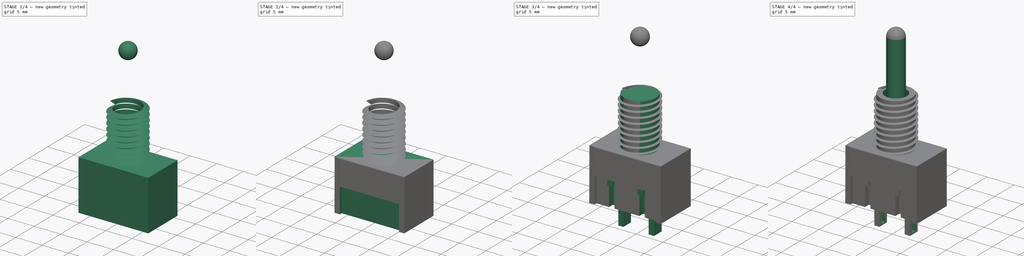
[diagram: build sequence overview — one tinted view per stage of 4, left to right]
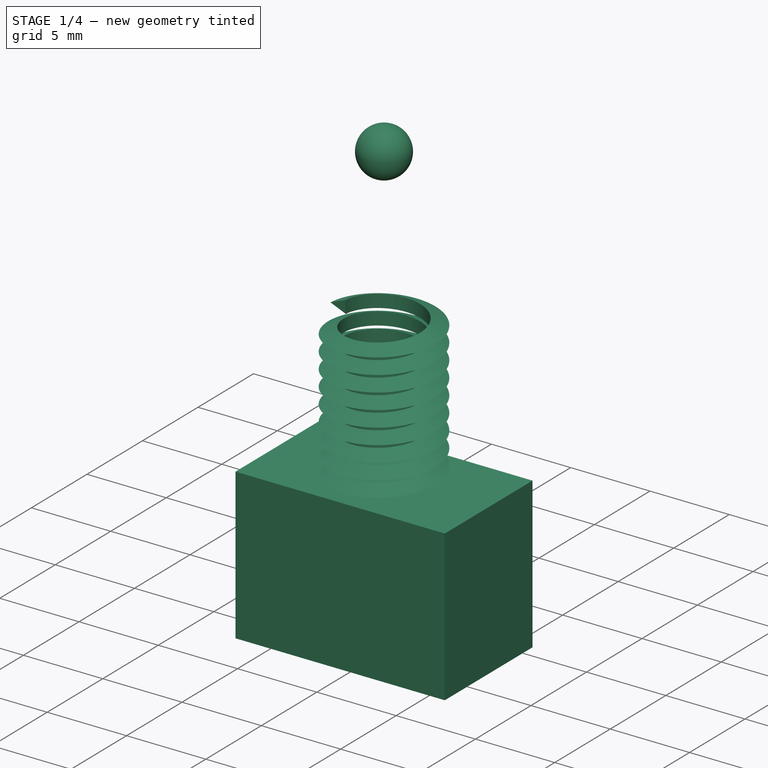
[diagram: stage 1 of 4 — iso view after this stage's code; geometry added in this stage tinted green]
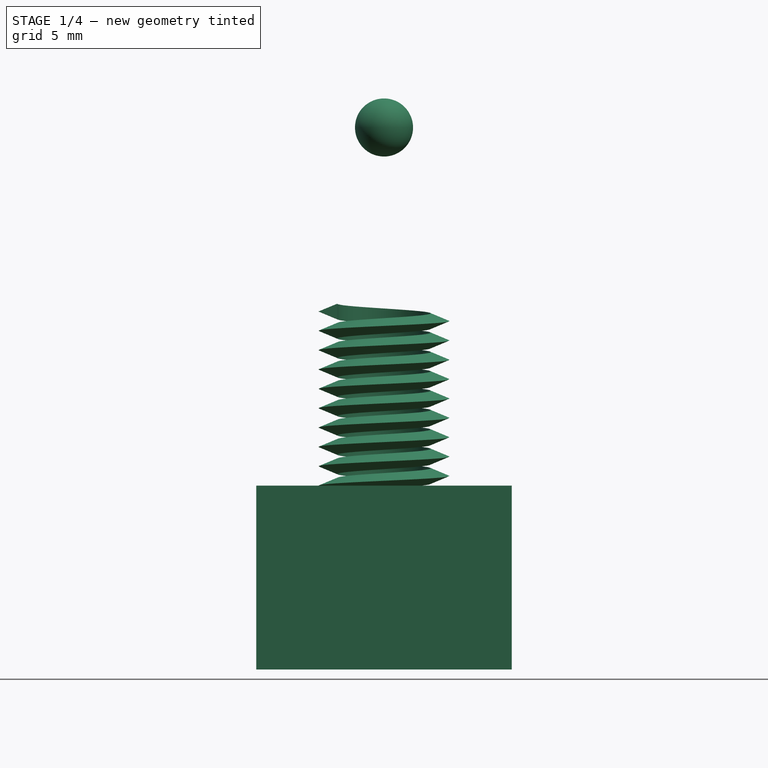
[diagram: stage 1 of 4 — front view after this stage's code; geometry added in this stage tinted green]
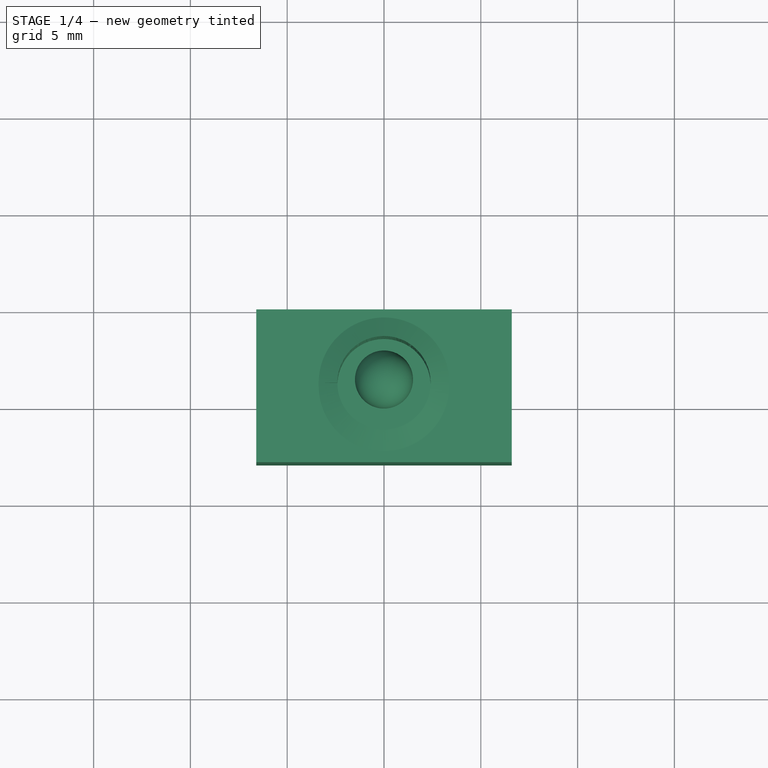
[diagram: stage 1 of 4 — top view after this stage's code; geometry added in this stage tinted green]
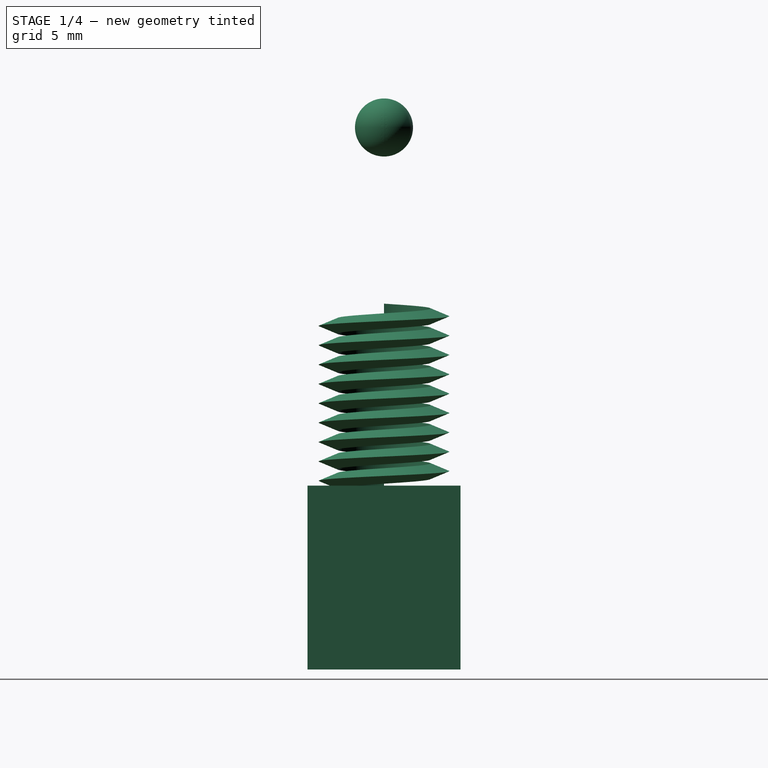
[diagram: stage 1 of 4 — right view after this stage's code; geometry added in this stage tinted green]
FCSTD DOCUMENT  (FreeCAD 0.19R24276 (Git))
Label: switch
License: All rights reserved
LicenseURL: http://en.wikipedia.org/wiki/All_rights_reserved
objects: Sketcher::SketchObject×12, PartDesign::Pad×7, PartDesign::Pocket×4, PartDesign::Body×2, Part::Sphere×1, Part::Helix×1, Part::Sweep×1
note: 39 computed .brp shape members not serialized (recipe doc carries the construction recipe); baked Part::Feature solids carry a one-line shape summary decoded from their .brp

FEATURE [Sketcher::SketchObject] Sketch
  FullyConstrained = true
  MapMode = 5
  Support = -> [XY_Plane]
  sketch-geometry (4):
    g0: LineSegment StartX=-6.6 StartY=0 StartZ=0 EndX=6.6 EndY=0 EndZ=0
    g1: LineSegment StartX=6.6 StartY=0 StartZ=0 EndX=6.6 EndY=-7.9 EndZ=0
    g2: LineSegment StartX=6.6 StartY=-7.9 StartZ=0 EndX=-6.6 EndY=-7.9 EndZ=0
    g3: LineSegment StartX=-6.6 StartY=-7.9 StartZ=0 EndX=-6.6 EndY=0 EndZ=0
  constraints (12):
    c: Coincident(g0,g1)
    c: Coincident(g1,g2)
    c: Coincident(g2,g3)
    c: Coincident(g3,g0)
    c: Horizontal(g0)
    c: Horizontal(g2)
    c: Vertical(g1)
    c: Vertical(g3)
    c: PointOnObject(g0,g-1)
    c: DistanceX(g0,g-1) = 6.6
    c: DistanceX(g-1,g0) = 6.6
    c: DistanceY(g1,g1) = 7.9
FEATURE [PartDesign::Pad] Pad
  Direction = (1,1,1)
  Length = 9.5
  Length2 = 100
  Profile = -> Sketch
  Type = 0
FEATURE [PartDesign::Body] Body  label="base switch"
  Group = -> [Sketch,Pad,Sketch001,Pad001,Sketch002,Pocket,Sketch003,Pad002,Sketch004,Pocket001,Sketch005,Pad003,Sketch006,Pad004,Sketch007,Pad005,Sketch008,Pocket002,Sketch009,Pocket003,Sketch010,Pad006]
  Origin = -> Origin
  Tip = -> Pad006
FEATURE [Part::Sphere] Sphere  label="Esfera"
  Angle1 = -90
  Angle2 = 90
  Angle3 = 360
  AttacherType = Attacher::AttachEngine3D
  Placement = pos=(0,-3.95,28) rot=(-0.412393,0.907265,0.082479;0rad)
  Radius = 1.5
FEATURE [Part::Helix] Helix  label="Hélice"
  Angle = 0
  AttacherType = Attacher::AttachEngine3D
  Height = 9
  LocalCoord = 0
  Pitch = 1
  Placement = pos=(0,-3.95,9.5) rot=(0,0,1;3.14159rad)
  Radius = 2.975
  Style = 1
FEATURE [Sketcher::SketchObject] Sketch011
  AttachmentOffset = pos=(0,0,3.95) rot=(0,0,1;0rad)
  FullyConstrained = false
  MapMode = 5
  Placement = pos=(0,-3.95,9e-16) rot=(1,0,0;1.5708rad)
  Support = -> [XZ_Plane001]
  sketch-geometry (8):
    g0: LineSegment StartX=0 StartY=0 StartZ=0 EndX=-2.975 EndY=0 EndZ=0
    g1: LineSegment StartX=-2.975 StartY=0 StartZ=0 EndX=-2.975 EndY=9.5 EndZ=0
    g2: LineSegment StartX=-3.375 StartY=9.5 StartZ=0 EndX=-2.40931 EndY=9.9 EndZ=0
    g3: LineSegment StartX=-2.40931 StartY=9.9 StartZ=0 EndX=-2.40931 EndY=9.1 EndZ=0
    g4: GeomPoint X=-2.40931 Y=9.5 Z=0
    g5: LineSegment StartX=-3.375 StartY=9.5 StartZ=0 EndX=-2.40931 EndY=9.1 EndZ=0
    g6: LineSegment StartX=-2.975 StartY=9.5 StartZ=0 EndX=-3.53003 EndY=9.5 EndZ=0
    g7: LineSegment StartX=-2.975 StartY=9.5 StartZ=0 EndX=-2.09766 EndY=9.5 EndZ=0
  constraints (22):
    c: Coincident(g0,g-1)
    c: Horizontal(g0)
    c: Coincident(g1,g0)
    c: Vertical(g1)
    c: DistanceX(g0,g0) = 2.975
    c: Coincident(g3,g2)
    c: Vertical(g3)
    c: PointOnObject(g4,g3)
    c: DistanceY(g4,g2) = 0.4
    c: DistanceY(g3,g4) = 0.4
    c: Coincident(g5,g2)
    c: Coincident(g5,g3)
    c: Angle(g5,g2) = 0.785398
    c: Horizontal(g6)
    c: PointOnObject(g5,g6)
    c: DistanceY(g1,g1) = 9.5
    c: PointOnObject(g6,g1)
    c: PointOnObject(g1,g6)
    c: DistanceX(g2,g1) = 0.4
    c: PointOnObject(g4,g7)
    c: Horizontal(g7)
    c: Coincident(g7,g1)
FEATURE [PartDesign::Body] Body001  label="rosca"
  Group = -> [Sketch011]
  Origin = -> Origin001
FEATURE [Part::Sweep] Sweep
  Frenet = true
  Sections = -> [Sketch011]
  Solid = true
  Spine = -> Helix [Edge1,Edge2,Edge3,Edge4,Edge5,Edge6,Edge7,Edge8,Edge9]
  Transition = 1
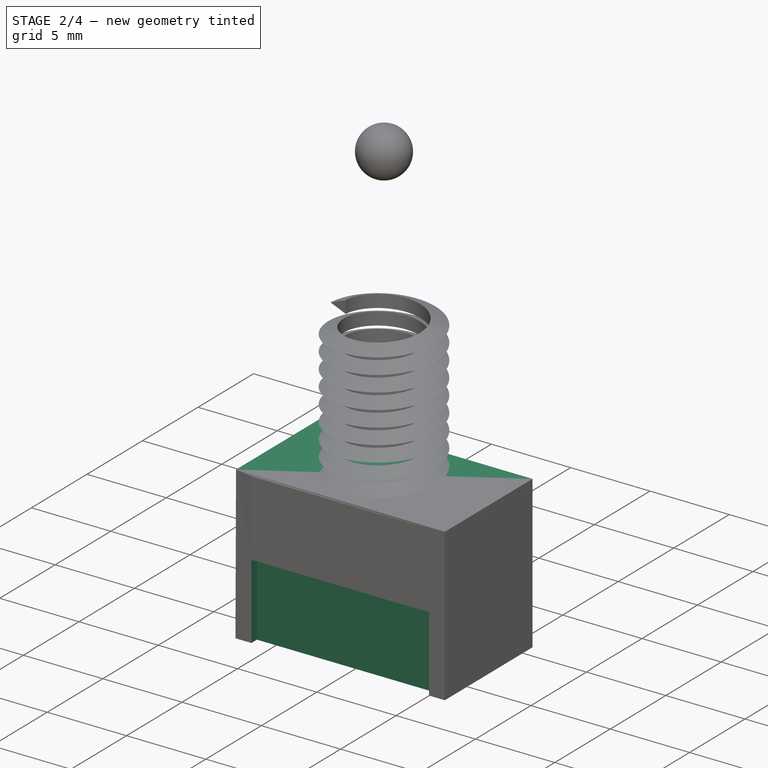
[diagram: stage 2 of 4 — iso view after this stage's code; geometry added in this stage tinted green]
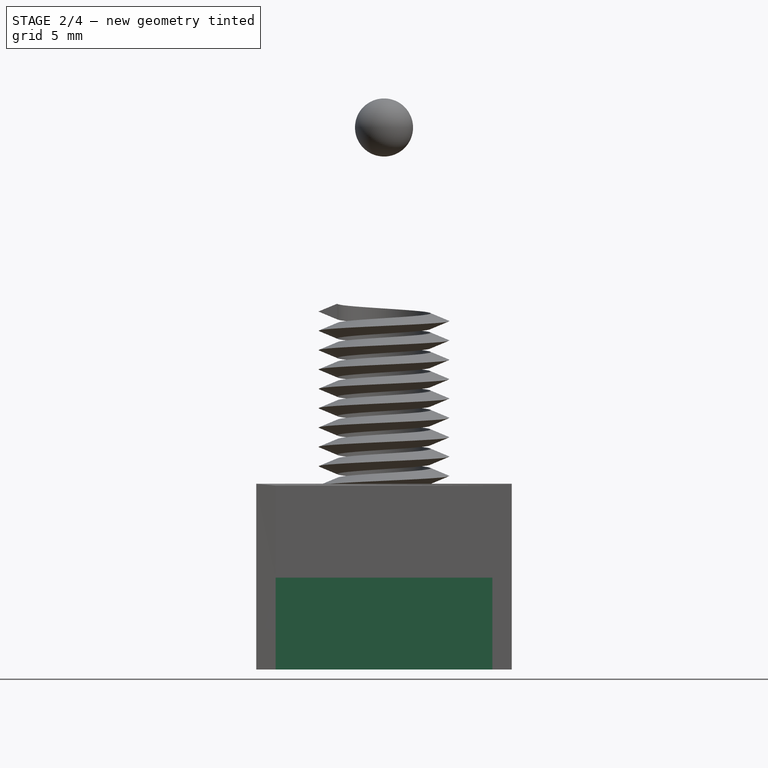
[diagram: stage 2 of 4 — front view after this stage's code; geometry added in this stage tinted green]
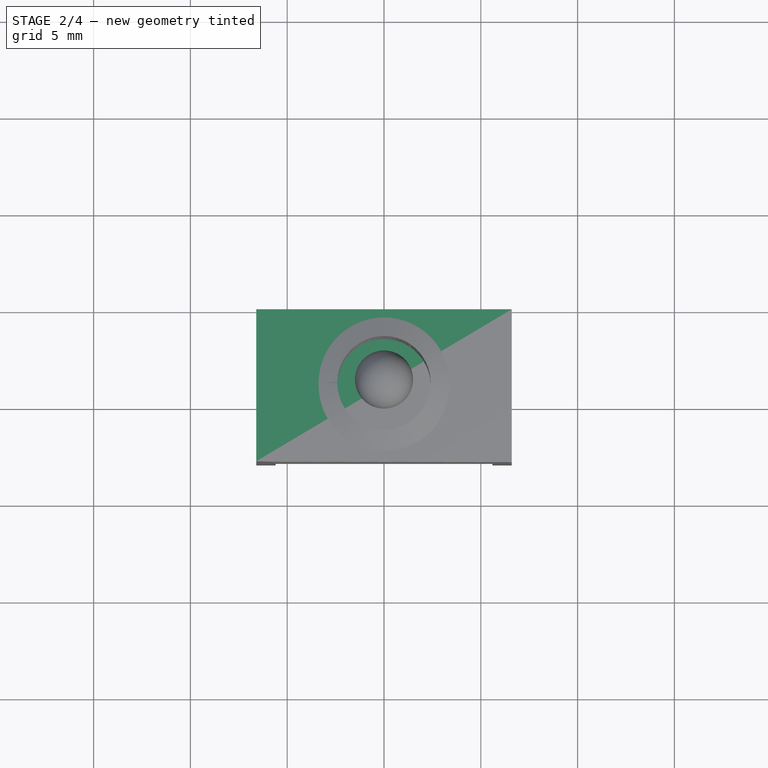
[diagram: stage 2 of 4 — top view after this stage's code; geometry added in this stage tinted green]
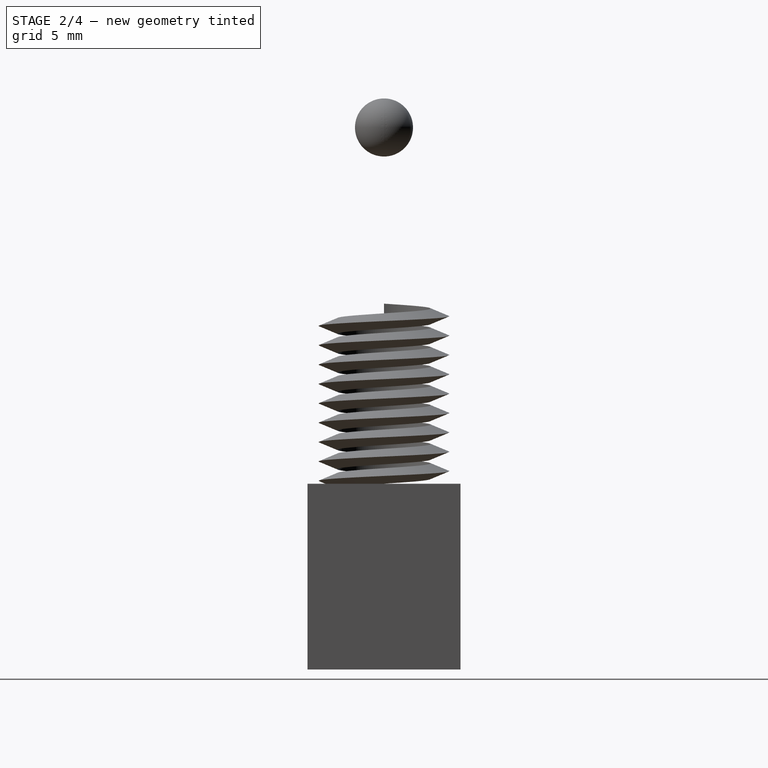
[diagram: stage 2 of 4 — right view after this stage's code; geometry added in this stage tinted green]
FEATURE [Sketcher::SketchObject] Sketch001
  ExternalGeometry = -> [Pad]
  FullyConstrained = true
  MapMode = 5
  Placement = pos=(0,0,9.5) rot=(0,0,1;0rad)
  Support = -> [Pad]
  sketch-geometry (5):
    g0: LineSegment StartX=-6.6 StartY=-7.9 StartZ=0 EndX=6.6 EndY=-7.9 EndZ=0
    g1: LineSegment StartX=6.6 StartY=-7.9 StartZ=0 EndX=6.6 EndY=0 EndZ=0
    g2: LineSegment StartX=6.6 StartY=0 StartZ=0 EndX=-6.6 EndY=0 EndZ=0
    g3: LineSegment StartX=-6.6 StartY=0 StartZ=0 EndX=-6.6 EndY=-7.9 EndZ=0
    g4: LineSegment StartX=-6.6 StartY=-7.9 StartZ=0 EndX=-6.6 EndY=-7.85 EndZ=0
  constraints (13):
    c: Coincident(g0,g1)
    c: Coincident(g1,g2)
    c: Coincident(g2,g3)
    c: Coincident(g3,g0)
    c: Horizontal(g0)
    c: Horizontal(g2)
    c: Vertical(g1)
    c: Vertical(g3)
    c: Coincident(g1,g-3)
    c: Coincident(g0,g-4)
    c: Coincident(g4,g0)
    c: Vertical(g4)
    c: DistanceY(g0,g4) = 0.05
FEATURE [PartDesign::Pad] Pad001  label="metal superior"
  BaseFeature = -> Pad
  Direction = (1,1,1)
  Length = 0.1
  Length2 = 100
  Profile = -> Sketch001
  Type = 0
FEATURE [Sketcher::SketchObject] Sketch002
  ExternalGeometry = -> [Pad001]
  FullyConstrained = true
  MapMode = 5
  Placement = pos=(0,-7.9,0) rot=(1,0,0;1.5708rad)
  Support = -> [Pad001]
  sketch-geometry (6):
    g0: LineSegment StartX=-6.6 StartY=9.5 StartZ=0 EndX=-5.6 EndY=9.5 EndZ=0
    g1: LineSegment StartX=6.6 StartY=0 StartZ=0 EndX=5.6 EndY=0 EndZ=0
    g2: LineSegment StartX=-5.6 StartY=9.5 StartZ=0 EndX=5.6 EndY=9.5 EndZ=0
    g3: LineSegment StartX=5.6 StartY=9.5 StartZ=0 EndX=5.6 EndY=0 EndZ=0
    g4: LineSegment StartX=5.6 StartY=0 StartZ=0 EndX=-5.6 EndY=0 EndZ=0
    g5: LineSegment StartX=-5.6 StartY=0 StartZ=0 EndX=-5.6 EndY=9.5 EndZ=0
  constraints (16):
    c: Coincident(g0,g-3)
    c: Coincident(g1,g-4)
    c: PointOnObject(g1,g-1)
    c: Horizontal(g0)
    c: DistanceX(g0,g0) = 1
    c: DistanceX(g1,g1) = 1
    c: Coincident(g2,g3)
    c: Coincident(g3,g4)
    c: Coincident(g4,g5)
    c: Coincident(g5,g2)
    c: Horizontal(g2)
    c: Horizontal(g4)
    c: Vertical(g3)
    c: Vertical(g5)
    c: Coincident(g2,g0)
    c: Coincident(g3,g1)
FEATURE [PartDesign::Pocket] Pocket  label="vaciado frontal"
  BaseFeature = -> Pad001
  Length = 0.5
  Length2 = 100
  Profile = -> Sketch002
  Type = 0
FEATURE [Sketcher::SketchObject] Sketch003
  ExternalGeometry = -> [Pocket]
  FullyConstrained = false
  MapMode = 5
  Placement = pos=(0,-7.4,1.4e-15) rot=(1,0,0;1.5708rad)
  Support = -> [Pocket]
  sketch-geometry (5):
    g0: LineSegment StartX=-5.6 StartY=9.5 StartZ=0 EndX=-5.6 EndY=4.75 EndZ=0
    g1: LineSegment StartX=5.59548 StartY=9.5 StartZ=0 EndX=-5.6 EndY=9.5 EndZ=0
    g2: LineSegment StartX=-5.6 StartY=9.5 StartZ=0 EndX=-5.6 EndY=4.75 EndZ=0
    g3: LineSegment StartX=-5.6 StartY=4.75 StartZ=0 EndX=5.59548 EndY=4.75 EndZ=0
    g4: LineSegment StartX=5.59548 StartY=4.75 StartZ=0 EndX=5.59548 EndY=9.5 EndZ=0
  constraints (13):
    c: Coincident(g0,g-3)
    c: Vertical(g0)
    c: DistanceY(g0,g0) = 4.75
    c: Coincident(g1,g2)
    c: Coincident(g2,g3)
    c: Coincident(g3,g4)
    c: Coincident(g4,g1)
    c: Horizontal(g1)
    c: Horizontal(g3)
    c: Vertical(g2)
    c: Vertical(g4)
    c: PointOnObject(g1,g-3)
    c: Coincident(g2,g0)
FEATURE [PartDesign::Pad] Pad002  label="metal frontal"
  BaseFeature = -> Pocket
  Direction = (1,1,1)
  Length = 0.5
  Length2 = 100
  Profile = -> Sketch003
  Type = 0
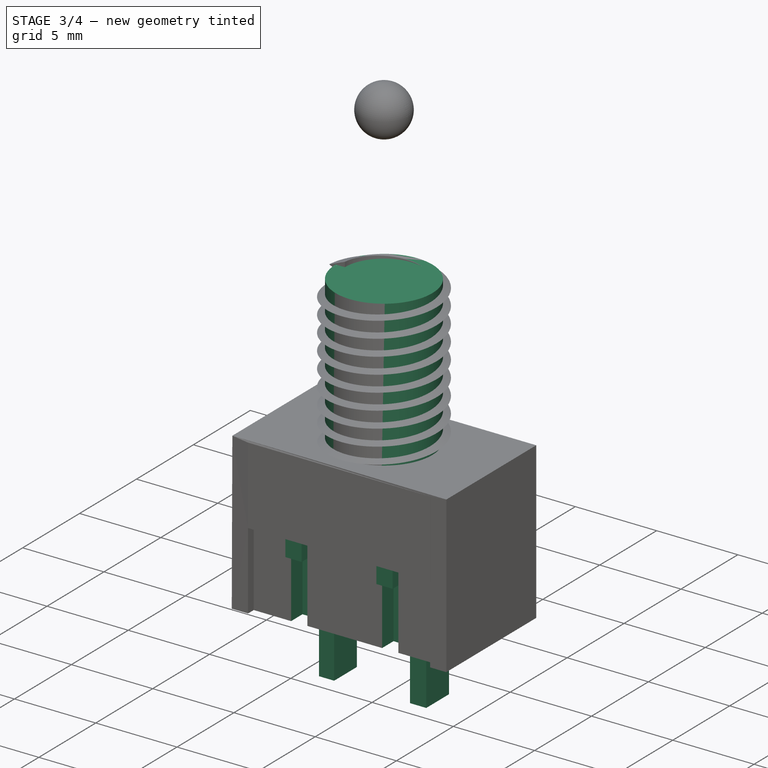
[diagram: stage 3 of 4 — iso view after this stage's code; geometry added in this stage tinted green]
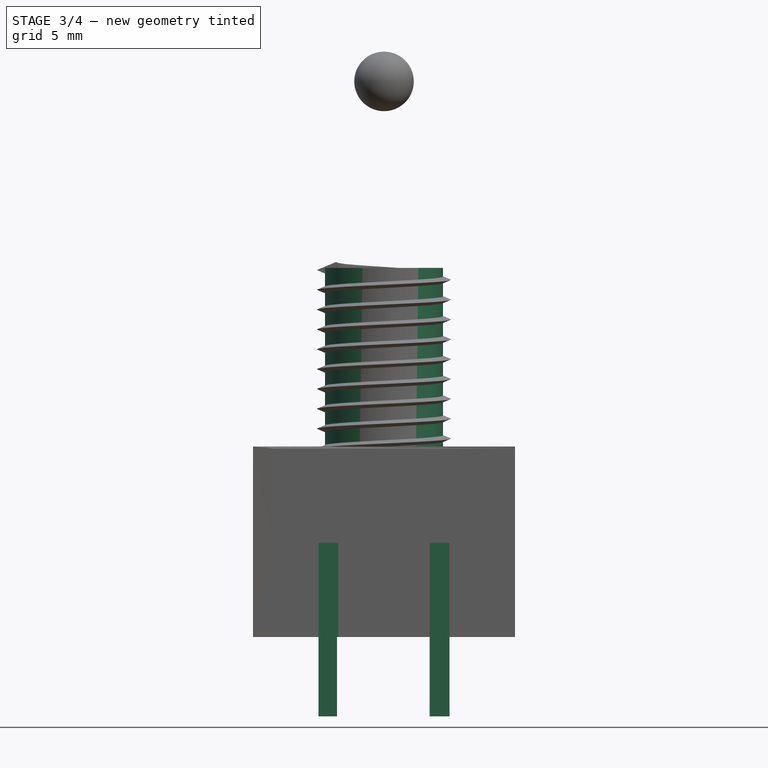
[diagram: stage 3 of 4 — front view after this stage's code; geometry added in this stage tinted green]
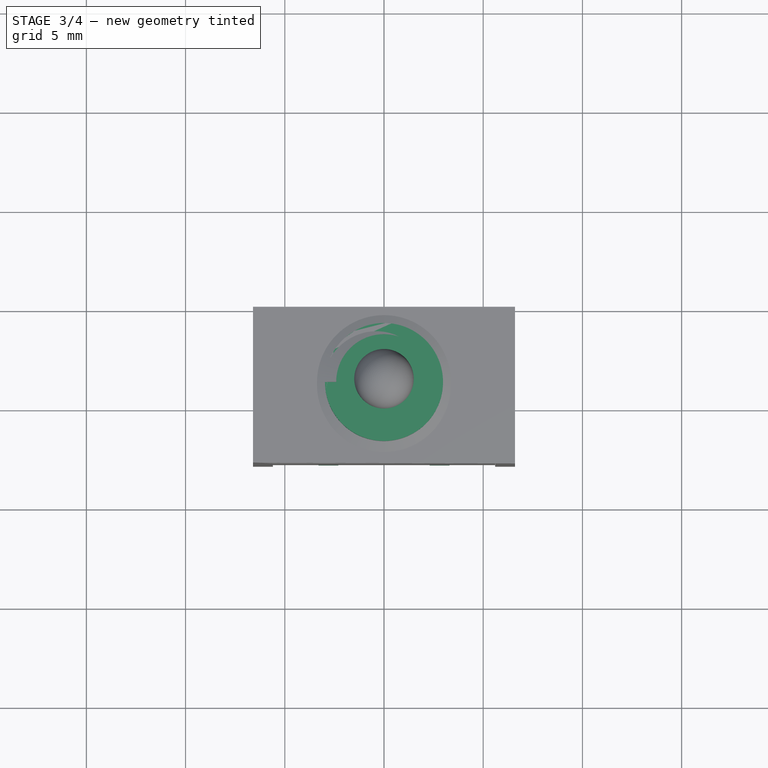
[diagram: stage 3 of 4 — top view after this stage's code; geometry added in this stage tinted green]
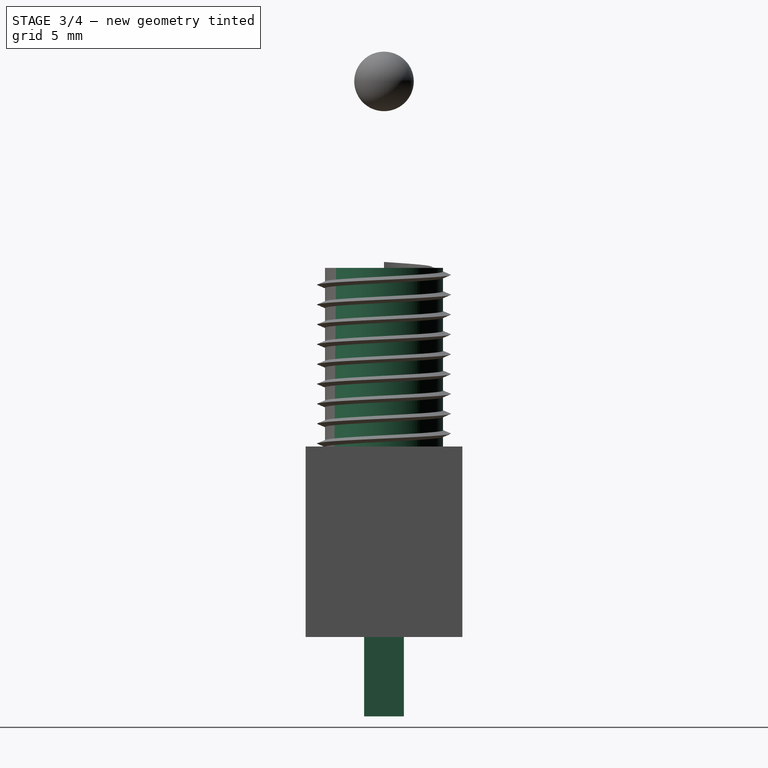
[diagram: stage 3 of 4 — right view after this stage's code; geometry added in this stage tinted green]
FEATURE [Sketcher::SketchObject] Sketch004
  ExternalGeometry = -> [Pad002]
  FullyConstrained = true
  MapMode = 5
  Placement = pos=(0,-7.4,1.4e-15) rot=(1,0,0;1.5708rad)
  Support = -> [Pad002]
  sketch-geometry (16):
    g0: LineSegment StartX=0 StartY=0 StartZ=0 EndX=-2.8 EndY=0 EndZ=0
    g1: LineSegment StartX=0 StartY=0 StartZ=0 EndX=2.8 EndY=0 EndZ=0
    g2: LineSegment StartX=2.8 StartY=0 StartZ=0 EndX=3.3 EndY=-1.8e-15 EndZ=0
    g3: LineSegment StartX=3.3 StartY=-1.8e-15 StartZ=0 EndX=3.3 EndY=4.75 EndZ=0
    g4: LineSegment StartX=3.3 StartY=4.75 StartZ=0 EndX=2.3 EndY=4.75 EndZ=0
    g5: LineSegment StartX=2.3 StartY=4.75 StartZ=0 EndX=3.3 EndY=4.75 EndZ=0
    g6: LineSegment StartX=3.3 StartY=4.75 StartZ=0 EndX=3.3 EndY=-1.8e-15 EndZ=0
    g7: LineSegment StartX=3.3 StartY=-1.8e-15 StartZ=0 EndX=2.3 EndY=-1.8e-15 EndZ=0
    g8: LineSegment StartX=2.3 StartY=-1.8e-15 StartZ=0 EndX=2.3 EndY=4.75 EndZ=0
    g9: LineSegment StartX=-2.8 StartY=0 StartZ=0 EndX=-3.3 EndY=0 EndZ=0
    g10: LineSegment StartX=-3.3 StartY=0 StartZ=0 EndX=-3.3 EndY=4.75 EndZ=0
    g11: LineSegment StartX=-3.3 StartY=4.75 StartZ=0 EndX=-2.3 EndY=4.75 EndZ=0
    g12: LineSegment StartX=-2.3 StartY=4.75 StartZ=0 EndX=-3.3 EndY=4.75 EndZ=0
    g13: LineSegment StartX=-3.3 StartY=4.75 StartZ=0 EndX=-3.3 EndY=0 EndZ=0
    g14: LineSegment StartX=-3.3 StartY=0 StartZ=0 EndX=-2.3 EndY=0 EndZ=0
    g15: LineSegment StartX=-2.3 StartY=0 StartZ=0 EndX=-2.3 EndY=4.75 EndZ=0
  constraints (46):
    c: DistanceX(g-3,g-3) = 11.2
    c: DistanceX(g-3,g-1) = 5.6
    c: Coincident(g0,g-1)
    c: Horizontal(g0)
    c: DistanceX(g0,g0) = 2.8
    c: Coincident(g1,g-1)
    c: Horizontal(g1)
    c: DistanceX(g1,g1) = 2.8
    c: Coincident(g2,g1)
    c: PointOnObject(g2,g-3)
    c: DistanceX(g2,g2) = 0.5
    c: Coincident(g3,g2)
    c: PointOnObject(g3,g-4)
    c: Vertical(g3)
    c: Coincident(g4,g3)
    c: Horizontal(g4)
    c: DistanceX(g4,g4) = 1
    c: Coincident(g5,g6)
    c: Coincident(g6,g7)
    c: Coincident(g7,g8)
    c: Coincident(g8,g5)
    c: Horizontal(g5)
    c: Horizontal(g7)
    c: Vertical(g6)
    c: Vertical(g8)
    c: Coincident(g5,g4)
    c: Coincident(g6,g2)
    c: Coincident(g9,g0)
    c: Horizontal(g9)
    c: DistanceX(g9,g9) = 0.5
    c: Coincident(g10,g9)
    c: PointOnObject(g10,g-4)
    c: Vertical(g10)
    c: Coincident(g11,g10)
    c: Horizontal(g11)
    c: DistanceX(g11,g11) = 1
    c: Coincident(g12,g13)
    c: Coincident(g13,g14)
    c: Coincident(g14,g15)
    c: Coincident(g15,g12)
    c: Horizontal(g12)
    c: Horizontal(g14)
    c: Vertical(g13)
    c: Vertical(g15)
    c: Coincident(g12,g11)
    c: Coincident(g13,g9)
FEATURE [PartDesign::Pocket] Pocket001  label="2barras vaciado frontal"
  BaseFeature = -> Pad002
  Length = 1
  Length2 = 100
  Profile = -> Sketch004
  Type = 0
FEATURE [Sketcher::SketchObject] Sketch005
  ExternalGeometry = -> [Pocket001]
  FullyConstrained = true
  MapMode = 5
  Placement = pos=(0,-7.9,1.5e-15) rot=(1,0,0;1.5708rad)
  Support = -> [Pocket001]
  sketch-geometry (10):
    g0: LineSegment StartX=-2.3 StartY=4.75 StartZ=0 EndX=-2.3 EndY=3.75 EndZ=0
    g1: LineSegment StartX=-2.3 StartY=3.75 StartZ=0 EndX=-3.3 EndY=3.75 EndZ=0
    g2: LineSegment StartX=-3.3 StartY=3.75 StartZ=0 EndX=-3.3 EndY=4.75 EndZ=0
    g3: LineSegment StartX=-3.3 StartY=4.75 StartZ=0 EndX=-2.3 EndY=4.75 EndZ=0
    g4: LineSegment StartX=-2.3 StartY=4.75 StartZ=0 EndX=-2.3 EndY=3.75 EndZ=0
    g5: LineSegment StartX=2.3 StartY=4.75 StartZ=0 EndX=2.3 EndY=3.75 EndZ=0
    g6: LineSegment StartX=3.3 StartY=4.75 StartZ=0 EndX=2.3 EndY=4.75 EndZ=0
    g7: LineSegment StartX=2.3 StartY=4.75 StartZ=0 EndX=2.3 EndY=3.75 EndZ=0
    g8: LineSegment StartX=2.3 StartY=3.75 StartZ=0 EndX=3.3 EndY=3.75 EndZ=0
    g9: LineSegment StartX=3.3 StartY=3.75 StartZ=0 EndX=3.3 EndY=4.75 EndZ=0
  constraints (26):
    c: Coincident(g0,g-6)
    c: Vertical(g0)
    c: DistanceY(g0,g0) = 1
    c: Coincident(g1,g2)
    c: Coincident(g2,g3)
    c: Coincident(g3,g4)
    c: Coincident(g4,g1)
    c: Horizontal(g1)
    c: Horizontal(g3)
    c: Vertical(g2)
    c: Vertical(g4)
    c: Coincident(g1,g0)
    c: Coincident(g2,g-4)
    c: Coincident(g5,g-5)
    c: Vertical(g5)
    c: DistanceY(g5,g5) = 1
    c: Coincident(g6,g7)
    c: Coincident(g7,g8)
    c: Coincident(g8,g9)
    c: Coincident(g9,g6)
    c: Horizontal(g6)
    c: Horizontal(g8)
    c: Vertical(g7)
    c: Vertical(g9)
    c: Coincident(g6,g-7)
    c: Coincident(g7,g5)
FEATURE [PartDesign::Pad] Pad003  label="chaflan frontal"
  BaseFeature = -> Pocket001
  Direction = (0,1,0)
  Length = 1.5
  Length2 = 100
  Profile = -> Sketch005
  Type = 0
  UseCustomVector = true
FEATURE [Sketcher::SketchObject] Sketch006
  ExternalGeometry = -> [Pad003]
  FullyConstrained = true
  MapMode = 5
  Placement = pos=(0,0,9.6) rot=(0,0,1;0rad)
  Support = -> [Pad003]
  sketch-geometry (4):
    g0: LineSegment StartX=6.6 StartY=0 StartZ=0 EndX=-6.6 EndY=-7.85 EndZ=0
    g1: LineSegment StartX=-6.6 StartY=0 StartZ=0 EndX=6.6 EndY=-7.9 EndZ=0
    g2: GeomPoint X=0 Y=-3.95 Z=0
    g3: Circle CenterX=0 CenterY=-3.95 CenterZ=0 NormalX=0 NormalY=0 NormalZ=1 AngleXU=0 Radius=2.975
  constraints (8):
    c: Coincident(g0,g-4)
    c: Coincident(g0,g-3)
    c: Coincident(g1,g-4)
    c: Coincident(g1,g-5)
    c: PointOnObject(g2,g-2)
    c: PointOnObject(g2,g1)
    c: Coincident(g3,g2)
    c: Diameter(g3) = 5.95
FEATURE [PartDesign::Pad] Pad004  label="cilindro para rosca"
  BaseFeature = -> Pad003
  Direction = (1,1,1)
  Length = 9
  Length2 = 100
  Profile = -> Sketch006
  Type = 0
FEATURE [Sketcher::SketchObject] Sketch007
  ExternalGeometry = -> [Pad004]
  FullyConstrained = false
  MapMode = 5
  Placement = pos=(0,0,0) rot=(1,0,0;3.14159rad)
  Support = -> [Pad004]
  sketch-geometry (18):
    g0: LineSegment StartX=-6.6 StartY=7.9 StartZ=0 EndX=-6.6 EndY=3.95 EndZ=0
    g1: LineSegment StartX=-6.6 StartY=3.95 StartZ=0 EndX=6.6 EndY=3.95 EndZ=0
    g2: LineSegment StartX=-3.3 StartY=6.4 StartZ=0 EndX=-3.3 EndY=3.95 EndZ=0
    g3: LineSegment StartX=2.3 StartY=6.4 StartZ=0 EndX=2.3 EndY=3.95 EndZ=0
    g4: LineSegment StartX=-3.3 StartY=3.95 StartZ=0 EndX=-3.3 EndY=4.95 EndZ=0
    g5: LineSegment StartX=-3.3 StartY=3.95 StartZ=0 EndX=-3.3 EndY=2.95 EndZ=0
    g6: LineSegment StartX=-3.3 StartY=2.95 StartZ=0 EndX=-2.36609 EndY=2.95 EndZ=0
    g7: LineSegment StartX=-2.36609 StartY=2.95 StartZ=0 EndX=-3.3 EndY=2.95 EndZ=0
    g8: LineSegment StartX=-3.3 StartY=2.95 StartZ=0 EndX=-3.3 EndY=4.95 EndZ=0
    g9: LineSegment StartX=-3.3 StartY=4.95 StartZ=0 EndX=-2.36609 EndY=4.95 EndZ=0
    g10: LineSegment StartX=-2.36609 StartY=4.95 StartZ=0 EndX=-2.36609 EndY=2.95 EndZ=0
    g11: LineSegment StartX=2.3 StartY=3.95 StartZ=0 EndX=2.3 EndY=4.95 EndZ=0
    g12: LineSegment StartX=2.3 StartY=3.95 StartZ=0 EndX=2.3 EndY=2.95 EndZ=0
    g13: LineSegment StartX=2.3 StartY=4.95 StartZ=0 EndX=3.3 EndY=4.95 EndZ=0
    g14: LineSegment StartX=3.3 StartY=4.95 StartZ=0 EndX=2.3 EndY=4.95 EndZ=0
    g15: LineSegment StartX=2.3 StartY=4.95 StartZ=0 EndX=2.3 EndY=2.95 EndZ=0
    g16: LineSegment StartX=2.3 StartY=2.95 StartZ=0 EndX=3.3 EndY=2.95 EndZ=0
    g17: LineSegment StartX=3.3 StartY=2.95 StartZ=0 EndX=3.3 EndY=4.95 EndZ=0
  constraints (50):
    c: DistanceY(g-5,g-5) = 7.9
    c: Coincident(g0,g-6)
    c: Vertical(g0)
    c: DistanceY(g0,g0) = 3.95
    c: Coincident(g1,g0)
    c: PointOnObject(g1,g-3)
    c: Horizontal(g1)
    c: Coincident(g2,g-7)
    c: PointOnObject(g2,g1)
    c: Vertical(g2)
    c: Coincident(g3,g-8)
    c: PointOnObject(g3,g1)
    c: Vertical(g3)
    c: Coincident(g4,g2)
    c: PointOnObject(g4,g2)
    c: Coincident(g5,g2)
    c: Vertical(g5)
    c: DistanceY(g5,g5) = 1
    c: DistanceY(g2,g4) = 1
    c: Coincident(g6,g5)
    c: Horizontal(g6)
    c: Coincident(g7,g8)
    c: Coincident(g8,g9)
    c: Coincident(g9,g10)
    c: Coincident(g10,g7)
    c: Horizontal(g7)
    c: Horizontal(g9)
    c: Vertical(g8)
    c: Vertical(g10)
    c: Coincident(g7,g6)
    c: Coincident(g8,g4)
    c: Coincident(g11,g3)
    c: PointOnObject(g11,g3)
    c: Coincident(g12,g3)
    c: Vertical(g12)
    c: DistanceY(g3,g11) = 1
    c: DistanceY(g12,g3) = 1
    c: Coincident(g13,g11)
    c: Horizontal(g13)
    c: DistanceX(g13,g13) = 1
    c: Coincident(g14,g15)
    c: Coincident(g15,g16)
    c: Coincident(g16,g17)
    c: Coincident(g17,g14)
    c: Horizontal(g14)
    c: Horizontal(g16)
    c: Vertical(g15)
    c: Vertical(g17)
    c: Coincident(g14,g13)
    c: Coincident(g15,g12)
FEATURE [PartDesign::Pad] Pad005  label="pines"
  BaseFeature = -> Pad004
  Direction = (1,1,1)
  Length = 4
  Length2 = 100
  Profile = -> Sketch007
  Type = 0
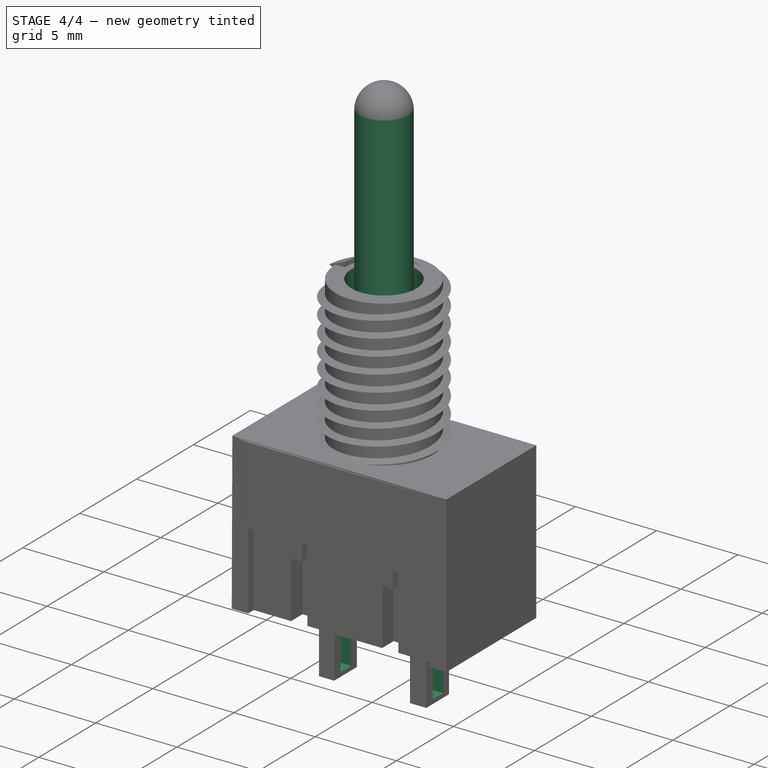
[diagram: stage 4 of 4 — iso view after this stage's code; geometry added in this stage tinted green]
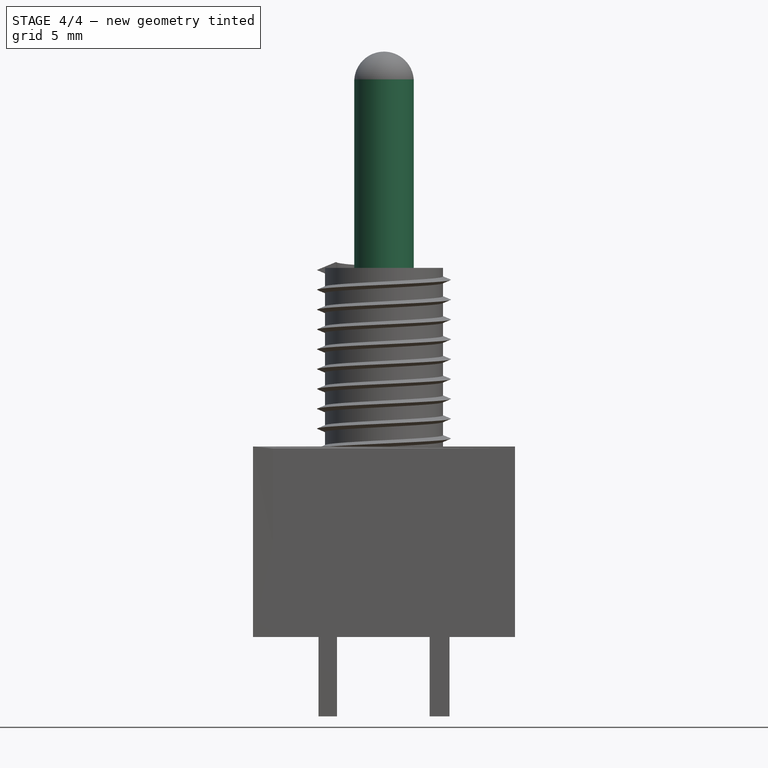
[diagram: stage 4 of 4 — front view after this stage's code; geometry added in this stage tinted green]
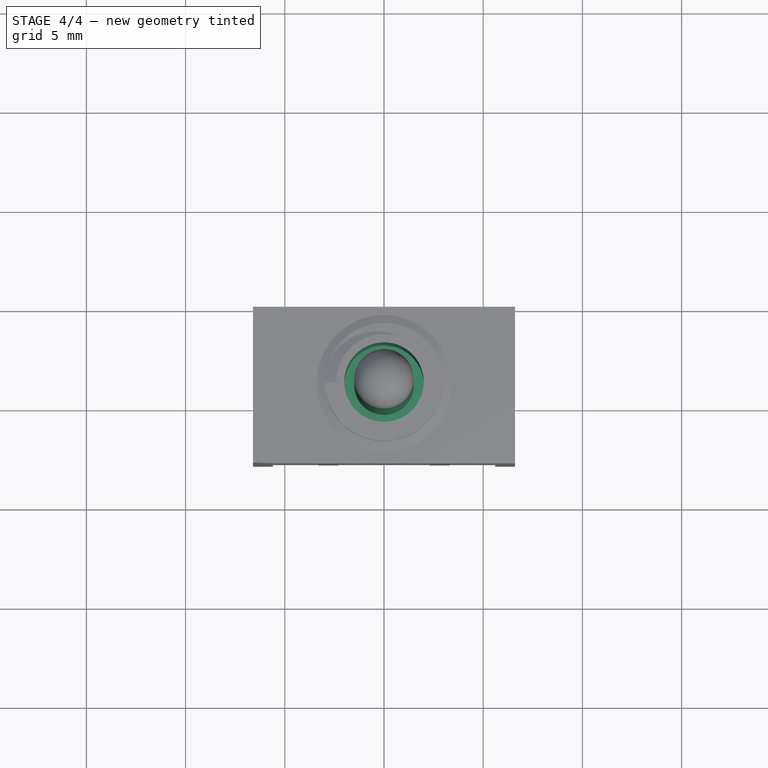
[diagram: stage 4 of 4 — top view after this stage's code; geometry added in this stage tinted green]
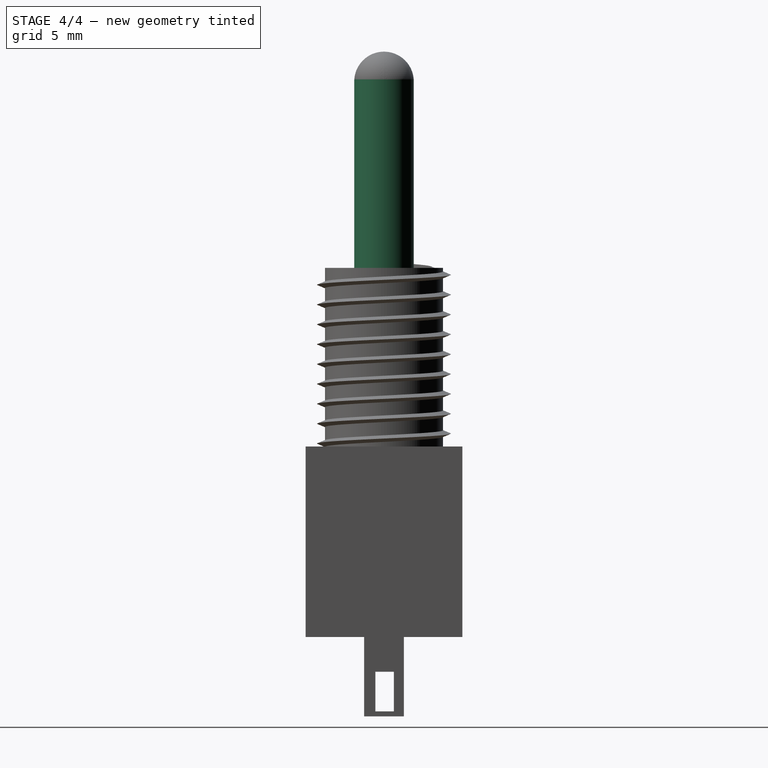
[diagram: stage 4 of 4 — right view after this stage's code; geometry added in this stage tinted green]
FEATURE [Sketcher::SketchObject] Sketch008
  ExternalGeometry = -> [Pad005]
  FullyConstrained = false
  MapMode = 5
  Placement = pos=(-3.3,0,0) rot=(0.57735,-0.57735,-0.57735;2.0944rad)
  Support = -> [Pad005]
  sketch-geometry (8):
    g0: LineSegment StartX=2.95 StartY=-4 StartZ=0 EndX=3.45 EndY=-4 EndZ=0
    g1: LineSegment StartX=4.95 StartY=-4 StartZ=0 EndX=4.38158 EndY=-4 EndZ=0
    g2: LineSegment StartX=4.38158 StartY=-4 StartZ=0 EndX=4.38158 EndY=-1.75 EndZ=0
    g3: LineSegment StartX=3.45 StartY=-4 StartZ=0 EndX=3.45 EndY=-3.75 EndZ=0
    g4: LineSegment StartX=4.38158 StartY=-1.75 StartZ=0 EndX=3.45 EndY=-1.75 EndZ=0
    g5: LineSegment StartX=3.45 StartY=-1.75 StartZ=0 EndX=3.45 EndY=-3.75 EndZ=0
    g6: LineSegment StartX=3.45 StartY=-3.75 StartZ=0 EndX=4.38158 EndY=-3.75 EndZ=0
    g7: LineSegment StartX=4.38158 StartY=-3.75 StartZ=0 EndX=4.38158 EndY=-1.75 EndZ=0
  constraints (22):
    c: DistanceX(g-4,g-4) = 2
    c: Coincident(g0,g-6)
    c: Horizontal(g0)
    c: DistanceX(g0,g0) = 0.5
    c: Coincident(g1,g-5)
    c: Horizontal(g1)
    c: Coincident(g2,g1)
    c: Vertical(g2)
    c: Coincident(g3,g0)
    c: Vertical(g3)
    c: DistanceY(g0,g3) = 0.25
    c: Coincident(g4,g5)
    c: Coincident(g5,g6)
    c: Coincident(g6,g7)
    c: Coincident(g7,g4)
    c: Horizontal(g4)
    c: Horizontal(g6)
    c: Vertical(g5)
    c: Vertical(g7)
    c: Coincident(g4,g2)
    c: Coincident(g5,g3)
    c: DistanceY(g7,g7) = 2
FEATURE [PartDesign::Pocket] Pocket002  label="vaciado pines"
  BaseFeature = -> Pad005
  Length = 5
  Length2 = 100
  Profile = -> Sketch008
  Type = 1
FEATURE [Sketcher::SketchObject] Sketch009
  ExternalGeometry = -> [Pocket002]
  FullyConstrained = true
  MapMode = 5
  Placement = pos=(0,0,18.6) rot=(0,0,1;0rad)
  Support = -> [Pocket002]
  sketch-geometry (1):
    g0: Circle CenterX=0 CenterY=-3.95 CenterZ=0 NormalX=0 NormalY=0 NormalZ=1 AngleXU=0 Radius=2
  constraints (2):
    c: Coincident(g0,g-3)
    c: Diameter(g0) = 4
FEATURE [PartDesign::Pocket] Pocket003  label="vaciado cilindro top"
  BaseFeature = -> Pocket002
  Length = 9
  Length2 = 100
  Profile = -> Sketch009
  Type = 0
FEATURE [Sketcher::SketchObject] Sketch010
  ExternalGeometry = -> [Pocket003]
  FullyConstrained = true
  MapMode = 5
  Placement = pos=(0,0,9.6) rot=(0,0,1;0rad)
  Support = -> [Pocket003]
  sketch-geometry (1):
    g0: Circle CenterX=0 CenterY=-3.95 CenterZ=0 NormalX=0 NormalY=0 NormalZ=1 AngleXU=0 Radius=1.5
  constraints (2):
    c: Coincident(g0,g-3)
    c: Diameter(g0) = 3
FEATURE [PartDesign::Pad] Pad006  label="barra top"
  BaseFeature = -> Pocket003
  Direction = (1,1,1)
  Length = 18.5
  Length2 = 100
  Profile = -> Sketch010
  Type = 0
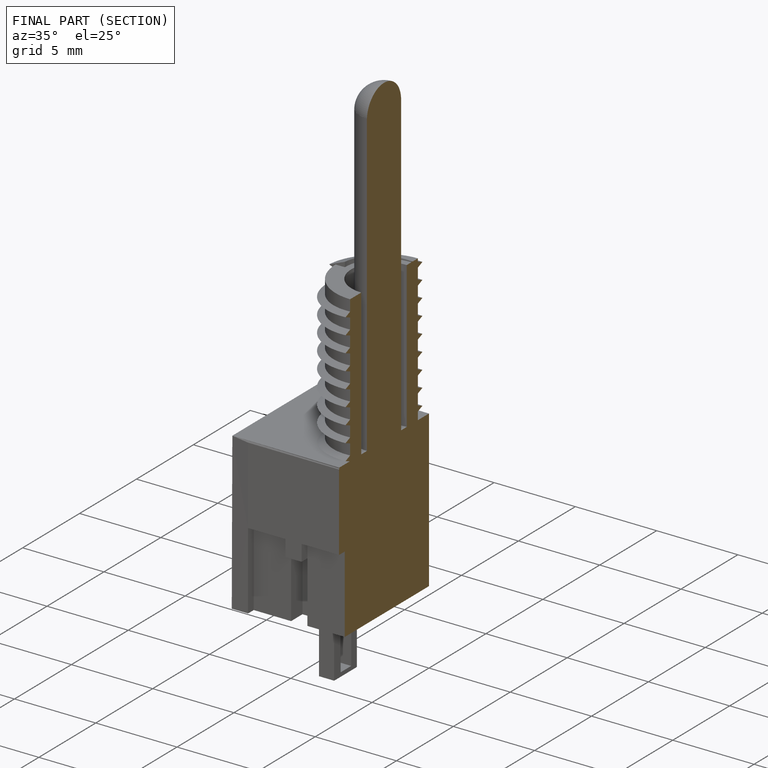
[diagram: finished part — half-section view (interior)]
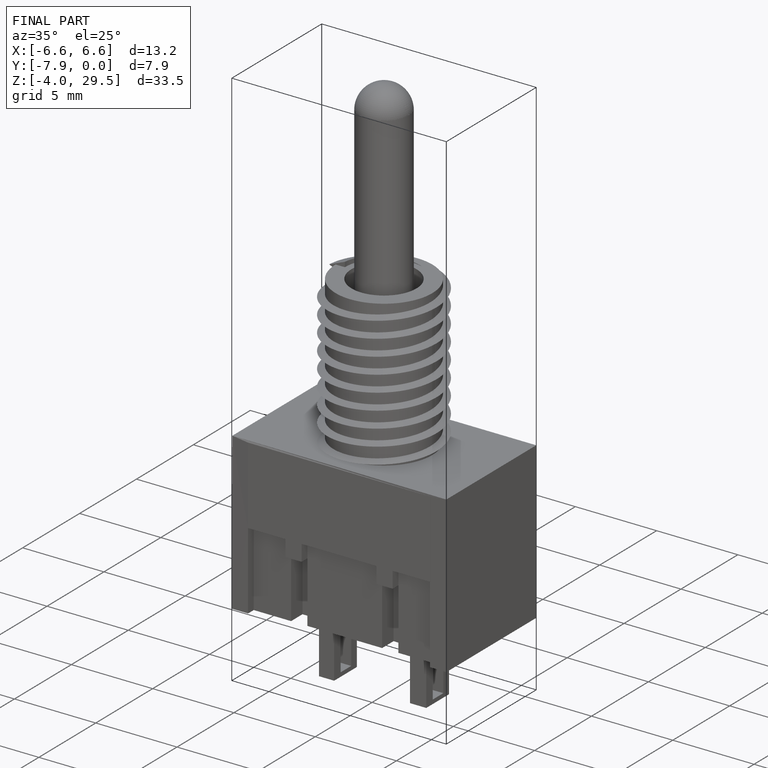
[diagram: finished part — iso view with bounding-box wireframe]
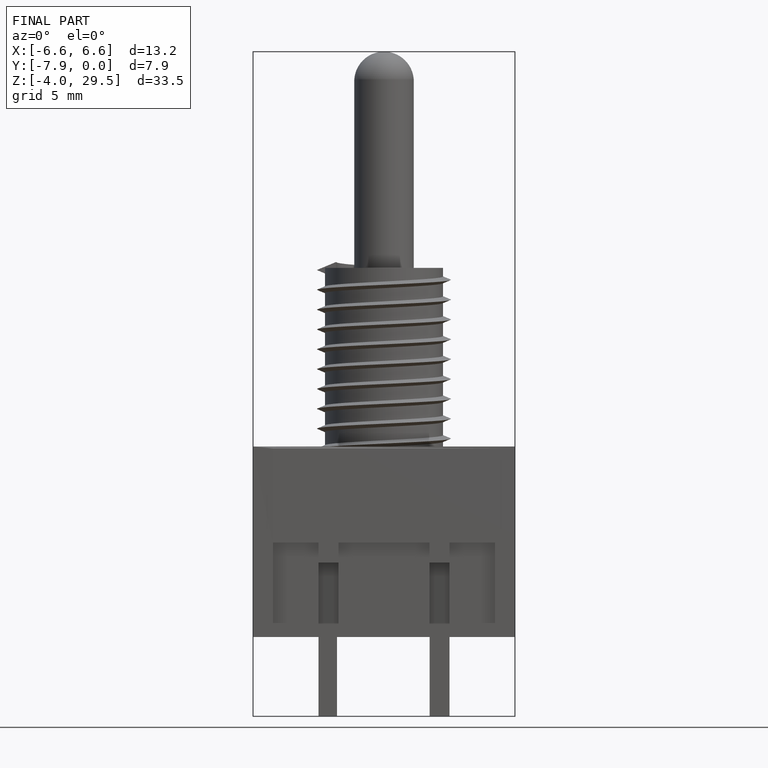
[diagram: finished part — front view with bounding-box wireframe]
